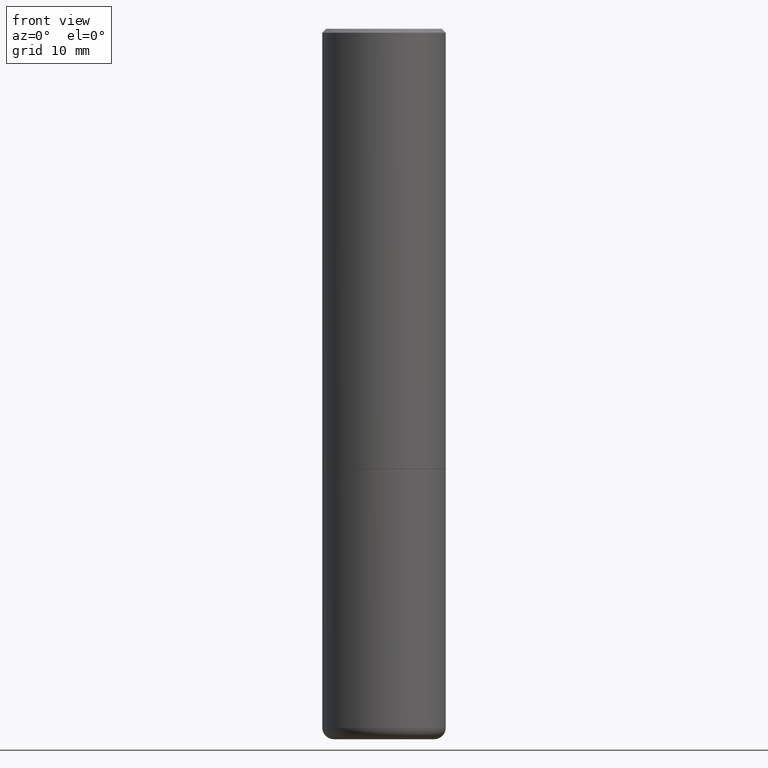
[diagram: clean part render]
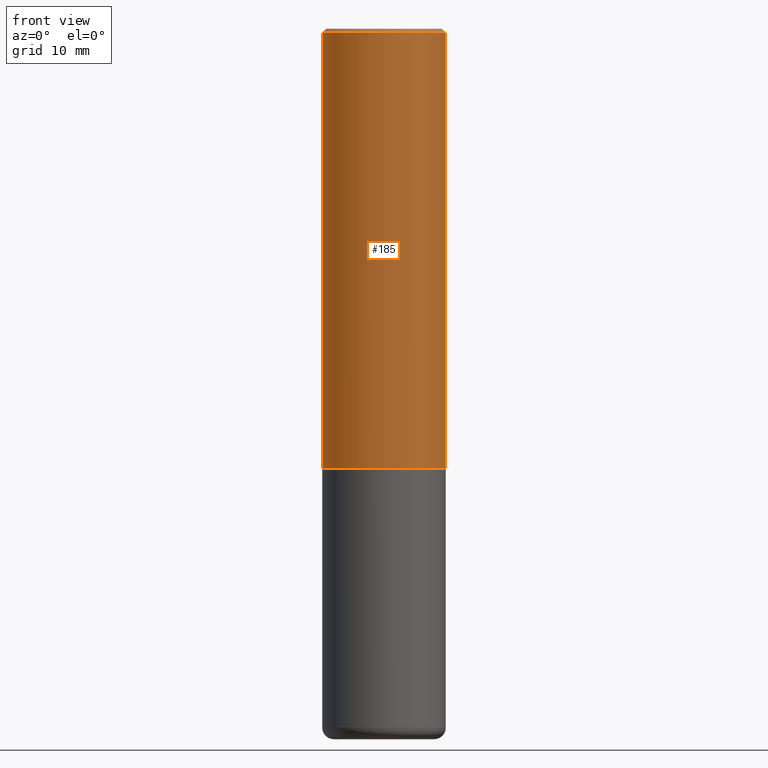
[diagram: same view with one face highlighted and labeled with its STEP entity id]
A machine part, front view. The second image highlights one B-rep face of the part: STEP entity #185.
In plain terms, the highlighted cylindrical surface (partial cylindrical patch) has radius 7.9997 mm, axis along (-0, 0, 1).
Its self-contained STEP definition (entity closure, byte-faithful):
#5 = ORIENTED_EDGE ( 'NONE', *, *, #411, .T. ) ;
#33 = EDGE_CURVE ( 'NONE', #145, #263, #414, .T. ) ;
#42 = CARTESIAN_POINT ( 'NONE',  ( -0.3149500000000001743, 2.237854346276436774E-15, -1.549218606675783237E-29 ) ) ;
#59 = AXIS2_PLACEMENT_3D ( 'NONE', #77, #228, #351 ) ;
#77 = CARTESIAN_POINT ( 'NONE',  ( 0.000000000000000000, 0.000000000000000000, 0.000000000000000000 ) ) ;
#83 = VECTOR ( 'NONE', #392, 39.37007874015748143 ) ;
#88 = CARTESIAN_POINT ( 'NONE',  ( -0.3149500000000000077, 2.129454468560426573E-15, -0.02000000000000006981 ) ) ;
#97 = CARTESIAN_POINT ( 'NONE',  ( 0.3149500000000000077, -2.230543471175007450E-15, -0.02000000000000006981 ) ) ;
#105 = DIRECTION ( 'NONE',  ( 1.000000000000000000, -6.982962677686267499E-15, 0.000000000000000000 ) ) ;
#107 = CYLINDRICAL_SURFACE ( 'NONE', #59, 0.3149500000000001743 ) ;
#111 = LINE ( 'NONE', #142, #83 ) ;
#114 = CIRCLE ( 'NONE', #240, 0.3149500000000000077 ) ;
#131 = DIRECTION ( 'NONE',  ( -2.445468806185136877E-29, 3.491481338843145188E-15, 1.000000000000000000 ) ) ;
#132 = CARTESIAN_POINT ( 'NONE',  ( -0.3149500000000002853, -1.712756788624580222E-15, -2.242999999999999883 ) ) ;
#139 = CARTESIAN_POINT ( 'NONE',  ( 0.3149500000000002853, -1.003067673836246727E-14, -2.242999999999999883 ) ) ;
#142 = CARTESIAN_POINT ( 'NONE',  ( 0.3149500000000001743, -2.199284095337290660E-15, 1.535751875536930690E-29 ) ) ;
#145 = VERTEX_POINT ( 'NONE', #132 ) ;
#149 = DIRECTION ( 'NONE',  ( -2.445468806185136597E-29, 3.491481338843145583E-15, 1.000000000000000000 ) ) ;
#151 = EDGE_LOOP ( 'NONE', ( #161, #227, #5, #355 ) ) ;
#161 = ORIENTED_EDGE ( 'NONE', *, *, #33, .F. ) ;
#175 = FACE_OUTER_BOUND ( 'NONE', #151, .T. ) ;
#185 = ADVANCED_FACE ( 'NONE', ( #175 ), #107, .T. ) ;
#191 = CARTESIAN_POINT ( 'NONE',  ( 5.485186532273261485E-29, -7.831392643025175821E-15, -2.242999999999999883 ) ) ;
#227 = ORIENTED_EDGE ( 'NONE', *, *, #315, .T. ) ;
#228 = DIRECTION ( 'NONE',  ( -2.445468806185136597E-29, 3.491481338843145583E-15, 1.000000000000000000 ) ) ;
#240 = AXIS2_PLACEMENT_3D ( 'NONE', #307, #149, #272 ) ;
#263 = VERTEX_POINT ( 'NONE', #88 ) ;
#269 = CIRCLE ( 'NONE', #404, 0.3149500000000002853 ) ;
#272 = DIRECTION ( 'NONE',  ( 1.000000000000000000, -6.982962677686266711E-15, 0.000000000000000000 ) ) ;
#280 = EDGE_CURVE ( 'NONE', #263, #335, #114, .T. ) ;
#307 = CARTESIAN_POINT ( 'NONE',  ( 4.890937612370289799E-31, -6.982962677686315028E-17, -0.02000000000000006981 ) ) ;
#315 = EDGE_CURVE ( 'NONE', #145, #387, #269, .T. ) ;
#319 = VECTOR ( 'NONE', #131, 39.37007874015748143 ) ;
#335 = VERTEX_POINT ( 'NONE', #97 ) ;
#351 = DIRECTION ( 'NONE',  ( 1.000000000000000000, -6.982962677686265922E-15, 4.876176775795935232E-29 ) ) ;
#355 = ORIENTED_EDGE ( 'NONE', *, *, #280, .F. ) ;
#387 = VERTEX_POINT ( 'NONE', #139 ) ;
#392 = DIRECTION ( 'NONE',  ( -2.445468806185136877E-29, 3.491481338843145188E-15, 1.000000000000000000 ) ) ;
#404 = AXIS2_PLACEMENT_3D ( 'NONE', #191, #417, #105 ) ;
#411 = EDGE_CURVE ( 'NONE', #387, #335, #111, .T. ) ;
#414 = LINE ( 'NONE', #42, #319 ) ;
#417 = DIRECTION ( 'NONE',  ( -2.445468806185136597E-29, 3.491481338843145583E-15, 1.000000000000000000 ) ) ;